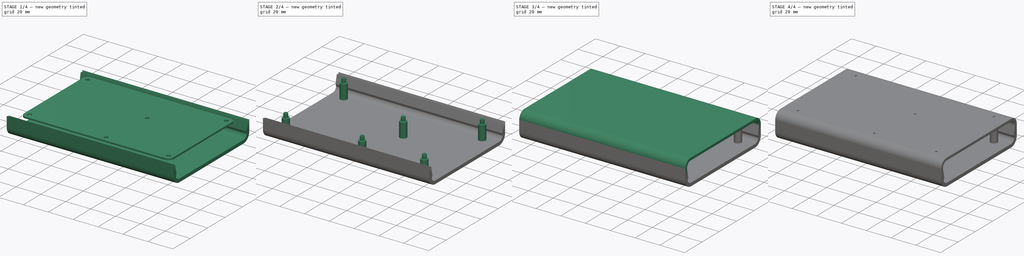
[diagram: build sequence overview — one tinted view per stage of 4, left to right]
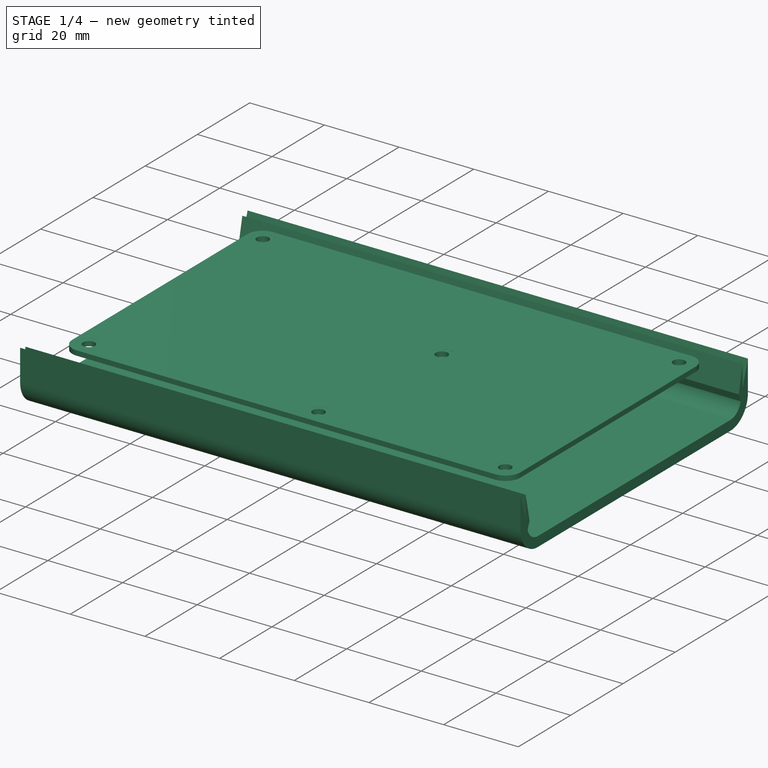
[diagram: stage 1 of 4 — iso view after this stage's code; geometry added in this stage tinted green]
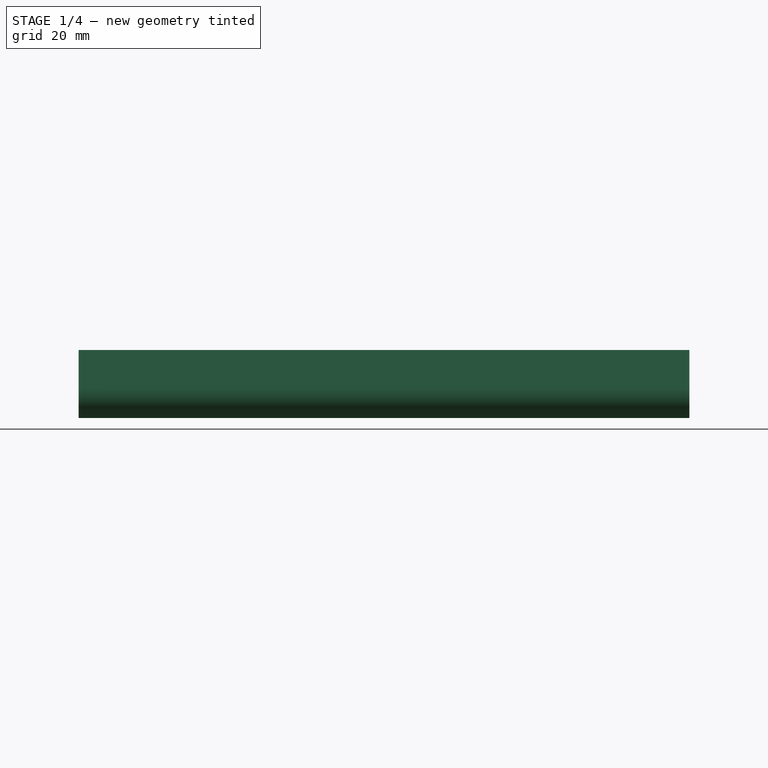
[diagram: stage 1 of 4 — front view after this stage's code; geometry added in this stage tinted green]
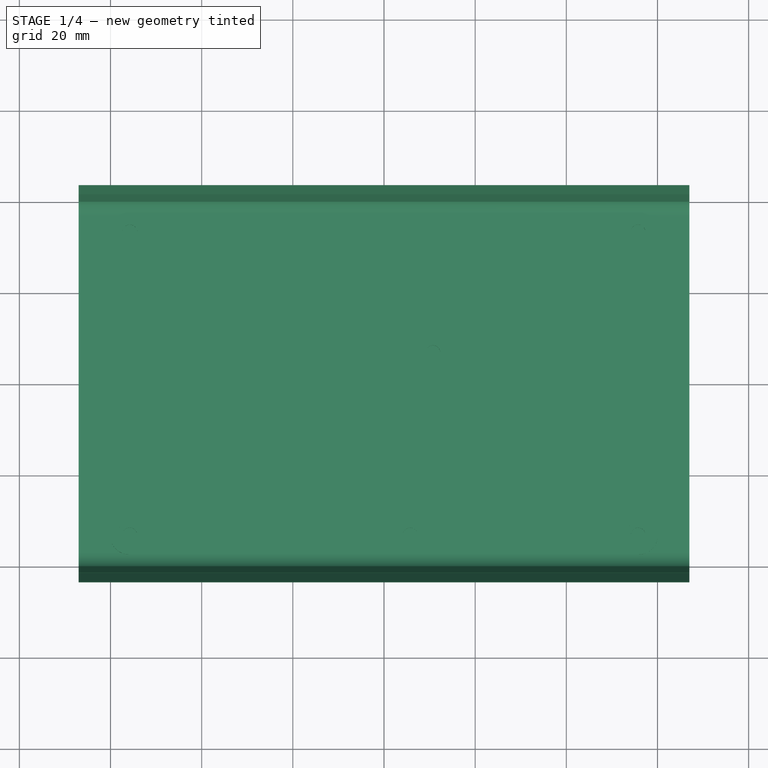
[diagram: stage 1 of 4 — top view after this stage's code; geometry added in this stage tinted green]
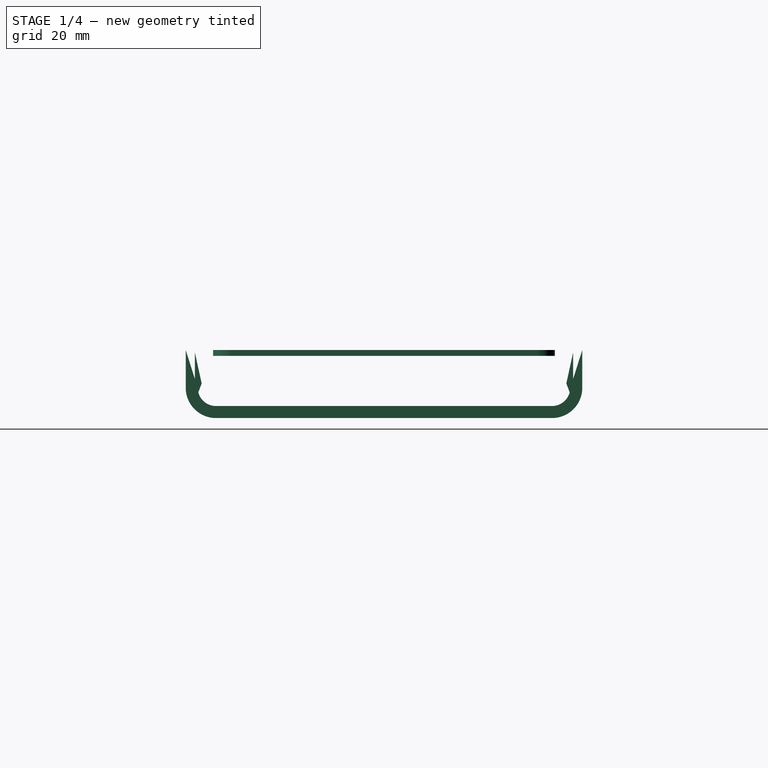
[diagram: stage 1 of 4 — right view after this stage's code; geometry added in this stage tinted green]
FCSTD DOCUMENT  (FreeCAD 1.0R39319 (Git))
Label: Закрывающий корпус новы
License: All rights reserved
LicenseURL: https://en.wikipedia.org/wiki/All_rights_reserved
objects: Sketcher::SketchObject×8, PartDesign::Pad×7, PartDesign::Pocket×4, PartDesign::Body×3, PartDesign::SubShapeBinder×2
note: 54 computed .brp shape members not serialized (recipe doc carries the construction recipe); baked Part::Feature solids carry a one-line shape summary decoded from their .brp

FEATURE [Sketcher::SketchObject] Sketch012  label="Тыльная сторона"
  ArcFitTolerance = 1e-06
  AttachmentOffset = pos=(0,0,60) rot=(0,0,1;3.14159rad)
  AttachmentSupport = -> [YZ_Plane]
  FullyConstrained = true
  MakeInternals = false
  MapMode = 5
  Placement = pos=(60,0,0) rot=(0.57735,-0.57735,0.57735;4.18879rad)
  sketch-geometry (23):
    g0: GeomPoint X=0 Y=0 Z=0
    g1: GeomPoint X=-7.5 Y=1.3 Z=0
    g2: GeomPoint X=-25.5 Y=1.3 Z=0
    g3: Circle CenterX=-25.5 CenterY=1.3 CenterZ=0 NormalX=0 NormalY=0 NormalZ=1 AngleXU=0 Radius=3.05
    g4: Circle CenterX=-7.5 CenterY=1.3 CenterZ=0 NormalX=0 NormalY=0 NormalZ=1 AngleXU=0 Radius=3.05
    g5: LineSegment [constr] StartX=-4.35 StartY=4.45 StartZ=0 EndX=-10.65 EndY=4.45 EndZ=0
    g6: LineSegment [constr] StartX=-10.65 StartY=4.45 StartZ=0 EndX=-10.65 EndY=-1.85 EndZ=0
    g7: LineSegment [constr] StartX=-10.65 StartY=-1.85 StartZ=0 EndX=-4.35 EndY=-1.85 EndZ=0
    g8: LineSegment [constr] StartX=-4.35 StartY=-1.85 StartZ=0 EndX=-4.35 EndY=4.45 EndZ=0
    g9: LineSegment [constr] StartX=-22.35 StartY=4.45 StartZ=0 EndX=-28.65 EndY=4.45 EndZ=0
    g10: LineSegment [constr] StartX=-28.65 StartY=4.45 StartZ=0 EndX=-28.65 EndY=-1.85 EndZ=0
    g11: LineSegment [constr] StartX=-28.65 StartY=-1.85 StartZ=0 EndX=-22.35 EndY=-1.85 EndZ=0
    g12: LineSegment [constr] StartX=-22.35 StartY=-1.85 StartZ=0 EndX=-22.35 EndY=4.45 EndZ=0
    g13: LineSegment [constr] StartX=37.5 StartY=0.65 StartZ=0 EndX=-37.5 EndY=0.65 EndZ=0
    g14: LineSegment [constr] StartX=-37.5 StartY=0.65 StartZ=0 EndX=-37.5 EndY=-0.65 EndZ=0
    g15: LineSegment [constr] StartX=-37.5 StartY=-0.65 StartZ=0 EndX=37.5 EndY=-0.65 EndZ=0
    g16: LineSegment [constr] StartX=37.5 StartY=-0.65 StartZ=0 EndX=37.5 EndY=0.65 EndZ=0
    g17: LineSegment StartX=10.1 StartY=1.85 StartZ=0 EndX=11.3042 EndY=0.65 EndZ=0
    g18: LineSegment StartX=11.3042 StartY=0.65 StartZ=0 EndX=16.4458 EndY=0.65 EndZ=0
    g19: LineSegment StartX=16.4458 StartY=0.65 StartZ=0 EndX=17.65 EndY=1.85 EndZ=0
    g20: LineSegment StartX=17.65 StartY=1.85 StartZ=0 EndX=16.4458 EndY=3.25 EndZ=0
    g21: LineSegment StartX=16.4458 StartY=3.25 StartZ=0 EndX=11.3042 EndY=3.25 EndZ=0
    g22: LineSegment StartX=11.3042 StartY=3.25 StartZ=0 EndX=10.1 EndY=1.85 EndZ=0
  constraints (61):
    c: DistanceX(g1,g0) = 7.5
    c: DistanceX(g2,g0) = 25.5
    c: Coincident(g3,g2)
    c: Coincident(g4,g1)
    c: Equal(g4,g3)
    c: Diameter(g4) = 6.1
    c: Coincident(g0,g-1)
    c: Coincident(g5,g6)
    c: Coincident(g6,g7)
    c: Coincident(g7,g8)
    c: Coincident(g8,g5)
    c: Horizontal(g5)
    c: Horizontal(g7)
    c: Vertical(g6)
    c: Vertical(g8)
    c: Coincident(g9,g10)
    c: Coincident(g10,g11)
    c: Coincident(g11,g12)
    c: Coincident(g12,g9)
    c: Horizontal(g9)
    c: Horizontal(g11)
    c: Vertical(g10)
    c: Vertical(g12)
    c: Coincident(g13,g14)
    c: Coincident(g14,g15)
    c: Coincident(g15,g16)
    c: Coincident(g16,g13)
    c: Horizontal(g13)
    c: Horizontal(g15)
    c: Vertical(g14)
    c: Vertical(g16)
    c: Distance(g14,g16) = 75
    c: Distance(g13,g15) = 1.3
    c: Symmetric(g14,g13,g0)
    c: Distance(g6,g15) = 1.2
    c: Symmetric(g6,g5,g1)
    c: DistanceY(g6,g6) = 6.3
    c: Equal(g5,g6)
    c: Symmetric(g10,g9,g2)
    c: Equal(g6,g10)
    c: Equal(g9,g10)
    c: Horizontal(g2,g1)
    c: Distance(g5,g13) = 3.8
    c: Coincident(g17,g18)
    c: Horizontal(g18)
    c: Coincident(g18,g19)
    c: Coincident(g19,g20)
    c: Coincident(g20,g21)
    c: Horizontal(g21)
    c: Coincident(g21,g22)
    c: Coincident(g22,g17)
    c: Equal(g20,g22)
    c: Equal(g17,g19)
    c: Vertical(g17,g21)
    c: Vertical(g20,g18)
    c: DistanceY(g17,g17) = 1.2
    c: DistanceX(g17,g19) = 7.55
    c: Distance(g21,g18) = 2.6
    c: Distance(g17,g17) = 1.7
    c: PointOnObject(g18,g13)
    c: DistanceX(g17,g13) = 27.4
FEATURE [Sketcher::SketchObject] Sketch013  label="Лицевая сторона"
  ArcFitTolerance = 1e-06
  AttachmentOffset = pos=(0,0,-60) rot=(-1,0,0;3.14159rad)
  AttachmentSupport = -> [YZ_Plane]
  FullyConstrained = true
  MakeInternals = false
  MapMode = 5
  Placement = pos=(-60,0,0) rot=(-0.57735,-0.57735,0.57735;2.0944rad)
  sketch-geometry (27):
    g0: GeomPoint X=2.2 Y=0.65 Z=0
    g1: GeomPoint X=6.77 Y=0.65 Z=0
    g2: GeomPoint X=11.34 Y=0.65 Z=0
    g3: GeomPoint X=-2.37 Y=0.65 Z=0
    g4: GeomPoint X=-6.94 Y=0.65 Z=0
    g5: GeomPoint X=-19.59 Y=0.65 Z=0
    g6: GeomPoint [constr] X=-19.59 Y=3.65 Z=0
    g7: GeomPoint X=-26.09 Y=3.65 Z=0
    g8: GeomPoint X=-13.09 Y=3.65 Z=0
    g9: GeomPoint X=23.5 Y=1.3 Z=0
    g10: Circle CenterX=23.5 CenterY=1.3 CenterZ=0 NormalX=0 NormalY=0 NormalZ=1 AngleXU=0 Radius=3.05
    g11: Circle CenterX=11.34 CenterY=0.65 CenterZ=0 NormalX=0 NormalY=0 NormalZ=1 AngleXU=0 Radius=1
    g12: Circle CenterX=6.77 CenterY=0.65 CenterZ=0 NormalX=0 NormalY=0 NormalZ=1 AngleXU=0 Radius=1
    g13: Circle CenterX=2.2 CenterY=0.65 CenterZ=0 NormalX=0 NormalY=0 NormalZ=1 AngleXU=0 Radius=1
    g14: Circle CenterX=-2.37 CenterY=0.65 CenterZ=0 NormalX=0 NormalY=0 NormalZ=1 AngleXU=0 Radius=1
    g15: Circle CenterX=-19.59 CenterY=0.65 CenterZ=0 NormalX=0 NormalY=0 NormalZ=1 AngleXU=0 Radius=1
    g16: Circle CenterX=-6.94 CenterY=0.65 CenterZ=0 NormalX=0 NormalY=0 NormalZ=1 AngleXU=0 Radius=1
    g17: Circle CenterX=-13.09 CenterY=3.65 CenterZ=0 NormalX=0 NormalY=0 NormalZ=1 AngleXU=0 Radius=2
    g18: Circle CenterX=-26.09 CenterY=3.65 CenterZ=0 NormalX=0 NormalY=0 NormalZ=1 AngleXU=0 Radius=2
    g19: LineSegment [constr] StartX=-37.5 StartY=0.65 StartZ=0 EndX=-37.5 EndY=-0.65 EndZ=0
    g20: LineSegment [constr] StartX=-37.5 StartY=-0.65 StartZ=0 EndX=37.5 EndY=-0.65 EndZ=0
    g21: LineSegment [constr] StartX=37.5 StartY=-0.65 StartZ=0 EndX=37.5 EndY=0.65 EndZ=0
    g22: LineSegment [constr] StartX=37.5 StartY=0.65 StartZ=0 EndX=-37.5 EndY=0.65 EndZ=0
    g23: LineSegment [constr] StartX=26.65 StartY=4.45 StartZ=0 EndX=20.35 EndY=4.45 EndZ=0
    g24: LineSegment [constr] StartX=20.35 StartY=4.45 StartZ=0 EndX=20.35 EndY=-1.85 EndZ=0
    g25: LineSegment [constr] StartX=20.35 StartY=-1.85 StartZ=0 EndX=26.65 EndY=-1.85 EndZ=0
    g26: LineSegment [constr] StartX=26.65 StartY=-1.85 StartZ=0 EndX=26.65 EndY=4.45 EndZ=0
  constraints (59):
    c: DistanceX(g-1,g0) = 2.2
    c: DistanceX(g0,g1) = 4.57
    c: DistanceX(g1,g2) = 4.57
    c: DistanceX(g3,g0) = 4.57
    c: DistanceX(g4,g3) = 4.57
    c: DistanceX(g5,g4) = 12.65
    c: Symmetric(g8,g7,g6)
    c: Vertical(g6,g5)
    c: DistanceX(g7,g6) = 6.5
    c: Horizontal(g7,g8)
    c: DistanceX(g2,g9) = 12.16
    c: Coincident(g10,g9)
    c: Diameter(g10) = 6.1
    c: Coincident(g11,g2)
    c: Coincident(g12,g1)
    c: Coincident(g13,g0)
    c: Coincident(g14,g3)
    c: Coincident(g15,g5)
    c: Coincident(g16,g4)
    c: Equal(g15,g16)
    c: Equal(g16,g14)
    c: Equal(g14,g13)
    c: Equal(g13,g12)
    c: Equal(g12,g11)
    c: Diameter(g12) = 2
    c: Coincident(g17,g8)
    c: Coincident(g18,g7)
    c: Equal(g18,g17)
    c: Diameter(g17) = 4
    c: Coincident(g19,g20)
    c: Coincident(g20,g21)
    c: Coincident(g21,g22)
    c: Coincident(g22,g19)
    c: Vertical(g19)
    c: Vertical(g21)
    c: Horizontal(g20)
    c: Horizontal(g22)
    c: DistanceY(g19,g19) = 1.3
    c: DistanceX(g22,g22) = 75
    c: Symmetric(g20,g19,g-1)
    c: Coincident(g23,g24)
    c: Coincident(g24,g25)
    c: Coincident(g25,g26)
    c: Coincident(g26,g23)
    c: Horizontal(g23)
    c: Horizontal(g25)
    c: Vertical(g24)
    c: Vertical(g26)
    c: Symmetric(g24,g23,g9)
    c: Distance(g24,g20) = 1.2
    c: Equal(g24,g23)
    c: DistanceY(g24,g24) = 6.3
    c: Horizontal(g0,g3)
    c: Horizontal(g1,g0)
    c: Horizontal(g3,g4)
    c: Distance(g6,g22) = 3
    c: Horizontal(g5,g4)
    c: Horizontal(g1,g2)
    c: DistanceY(g-1,g0) = 0.65
FEATURE [Sketcher::SketchObject] Sketch  label="Основной эскиз"
  ArcFitTolerance = 1e-06
  FullyConstrained = true
  MakeInternals = false
  MapMode = 5
  sketch-geometry (25):
    g0: Circle CenterX=-55.75 CenterY=33.25 CenterZ=0 NormalX=0 NormalY=0 NormalZ=1 AngleXU=0 Radius=1.6
    g1: Circle CenterX=55.75 CenterY=33.25 CenterZ=0 NormalX=0 NormalY=0 NormalZ=1 AngleXU=0 Radius=1.6
    g2: Circle CenterX=-55.75 CenterY=-33.25 CenterZ=0 NormalX=0 NormalY=0 NormalZ=1 AngleXU=0 Radius=1.6
    g3: Circle CenterX=55.75 CenterY=-33.25 CenterZ=0 NormalX=0 NormalY=0 NormalZ=1 AngleXU=0 Radius=1.6
    g4: Circle CenterX=5.75 CenterY=-33.25 CenterZ=0 NormalX=0 NormalY=0 NormalZ=1 AngleXU=0 Radius=1.6
    g5: Circle CenterX=10.75 CenterY=6.75 CenterZ=0 NormalX=0 NormalY=0 NormalZ=1 AngleXU=0 Radius=1.6
    g6: Circle CenterX=-55.75 CenterY=33.25 CenterZ=0 NormalX=0 NormalY=0 NormalZ=1 AngleXU=0 Radius=2.75
    g7: Circle CenterX=5.75 CenterY=-33.25 CenterZ=0 NormalX=0 NormalY=0 NormalZ=1 AngleXU=0 Radius=2.75
    g8: Circle CenterX=55.75 CenterY=33.25 CenterZ=0 NormalX=0 NormalY=0 NormalZ=1 AngleXU=0 Radius=2.75
    g9: Circle CenterX=10.75 CenterY=6.75 CenterZ=0 NormalX=0 NormalY=0 NormalZ=1 AngleXU=0 Radius=2.75
    g10: Circle CenterX=55.75 CenterY=-33.25 CenterZ=0 NormalX=0 NormalY=0 NormalZ=1 AngleXU=0 Radius=2.75
    g11: Circle CenterX=-55.75 CenterY=-33.25 CenterZ=0 NormalX=0 NormalY=0 NormalZ=1 AngleXU=0 Radius=2.75
    g12: GeomPoint [constr] X=0 Y=0 Z=0
    g13: GeomPoint [constr] X=-60 Y=-37.5 Z=0
    g14: GeomPoint [constr] X=-60 Y=37.5 Z=0
    g15: GeomPoint [constr] X=60 Y=37.5 Z=0
    g16: GeomPoint [constr] X=60 Y=-37.5 Z=0
    g17: ArcOfCircle CenterX=-56 CenterY=-33.5 CenterZ=0 NormalX=0 NormalY=0 NormalZ=1 AngleXU=0 Radius=4 StartAngle=3.14159 EndAngle=4.71239
    g18: ArcOfCircle CenterX=-56 CenterY=33.5 CenterZ=0 NormalX=0 NormalY=0 NormalZ=1 AngleXU=0 Radius=4 StartAngle=1.5708 EndAngle=3.14159
    g19: ArcOfCircle CenterX=56 CenterY=33.5 CenterZ=0 NormalX=0 NormalY=0 NormalZ=1 AngleXU=0 Radius=4 StartAngle=0 EndAngle=1.5708
    g20: ArcOfCircle CenterX=56 CenterY=-33.5 CenterZ=0 NormalX=0 NormalY=0 NormalZ=1 AngleXU=0 Radius=4 StartAngle=4.71239 EndAngle=6.28319
    g21: LineSegment StartX=-56 StartY=-37.5 StartZ=0 EndX=56 EndY=-37.5 EndZ=0
    g22: LineSegment StartX=60 StartY=-33.5 StartZ=0 EndX=60 EndY=33.5 EndZ=0
    g23: LineSegment StartX=56 StartY=37.5 StartZ=0 EndX=-56 EndY=37.5 EndZ=0
    g24: LineSegment StartX=-60 StartY=33.5 StartZ=0 EndX=-60 EndY=-33.5 EndZ=0
  constraints (65):
    c: Equal(g0,g2)
    c: Equal(g2,g4)
    c: Equal(g4,g5)
    c: Equal(g5,g3)
    c: Equal(g3,g1)
    c: Vertical(g2,g0)
    c: Vertical(g1,g3)
    c: Horizontal(g3,g2)
    c: DistanceX(g0,g1) = 111.5  'Main Lenght'
    c: DistanceY(g3,g1) = 66.5
    c: Radius(g0) = 1.6
    c: Coincident(g6,g0)
    c: Coincident(g7,g4)
    c: Coincident(g8,g1)
    c: Coincident(g9,g5)
    c: Coincident(g10,g3)
    c: Coincident(g11,g2)
    c: Diameter(g6) = 5.5
    c: Equal(g6,g7)
    c: Equal(g7,g8)
    c: Equal(g8,g10)
    c: Equal(g10,g9)
    c: Equal(g9,g11)
    c: Symmetric(g2,g1,g12)
    c: Coincident(g-1,g12)
    c: Horizontal(g17,g20)
    c: Vertical(g20,g19)
    c: Horizontal(g19,g18)
    c: Vertical(g18,g17)
    c: Vertical(g13,g17)
    c: Horizontal(g13,g17)
    c: Vertical(g17,g17)
    c: Vertical(g18,g18)
    c: Horizontal(g18,g14)
    c: Vertical(g18,g14)
    c: Horizontal(g18,g18)
    c: Vertical(g19,g19)
    c: Horizontal(g19,g15)
    c: Vertical(g15,g19)
    c: Horizontal(g19,g19)
    c: Vertical(g16,g20)
    c: Horizontal(g16,g20)
    c: Vertical(g20,g20)
    c: Horizontal(g20,g20)
    c: Coincident(g21,g17)
    c: Coincident(g21,g20)
    c: Coincident(g22,g20)
    c: Coincident(g22,g19)
    c: Coincident(g23,g19)
    c: Coincident(g23,g18)
    c: Coincident(g24,g18)
    c: Tangent(g24,g17) = -1.5708
    c: Radius(g18) = 4
    c: Equal(g17,g18)
    c: Equal(g18,g19)
    c: Equal(g19,g20)
    c: DistanceY(g13,g14) = 75
    c: DistanceX(g14,g15) = 120
    c: Symmetric(g13,g15,g12)
    c: Horizontal(g2,g4)
    c: DistanceY(g4,g5) = 40
    c: Horizontal(g0,g1)
    c: Distance(g22,g24) = 120
    c: DistanceX(g4,g3) = 50
    c: DistanceX(g4,g5) = 5
FEATURE [PartDesign::Pad] Pad  label="Основа "
  Direction = (0,0,1)
  Length = 0.65
  Length2 = 0.65
  Profile = -> Sketch [Edge15,Edge16,Edge17,Edge18,Edge19,Edge20,Edge13,Edge14,Edge9,Edge10,Edge8,Edge11,Edge12,Edge7]
  ReferenceAxis = -> Sketch [N_Axis]
  Refine = true
  Suppressed = false
  Type = 4
FEATURE [PartDesign::Pad] Pad001  label="Отверстия под крепления"
  BaseFeature = -> Pad
  Direction = (0,0,1)
  Length = 0.63
  Length2 = 0.63
  Profile = -> Sketch [Edge8,Edge5,Edge12,Edge3,Edge10,Edge6,Edge7,Edge1,Edge9,Edge2,Edge4,Edge11]
  ReferenceAxis = -> Sketch [N_Axis]
  Refine = true
  Suppressed = false
  Type = 4
FEATURE [Sketcher::SketchObject] Sketch015
  ArcFitTolerance = 1e-06
  AttachmentSupport = -> [YZ_Plane002]
  FullyConstrained = true
  MakeInternals = false
  MapMode = 5
  Placement = pos=(0,0,0) rot=(0.57735,0.57735,0.57735;2.0944rad)
  sketch-geometry (22):
    g0: LineSegment StartX=-41.5 StartY=-5.69319 StartZ=0 EndX=-43.5 EndY=0.65 EndZ=0
    g1: LineSegment StartX=-41.5 StartY=0.15 StartZ=0 EndX=-41.5 EndY=-5.69319 EndZ=0
    g2: LineSegment StartX=-41.5 StartY=0.15 StartZ=0 EndX=-40 EndY=-6.69319 EndZ=0
    g3: LineSegment StartX=-40 StartY=-6.69319 StartZ=0 EndX=-40.7366 EndY=-8.65 EndZ=0
    g4: LineSegment StartX=-43.5 StartY=0.65 StartZ=0 EndX=-43.5 EndY=-7.65 EndZ=0
    g5: LineSegment [constr] StartX=-37.5 StartY=0.65 StartZ=0 EndX=-37.5 EndY=-0.65 EndZ=0
    g6: LineSegment [constr] StartX=-37.5 StartY=-0.65 StartZ=0 EndX=37.5 EndY=-0.65 EndZ=0
    g7: LineSegment [constr] StartX=37.5 StartY=-0.65 StartZ=0 EndX=37.5 EndY=0.65 EndZ=0
    g8: LineSegment [constr] StartX=37.5 StartY=0.65 StartZ=0 EndX=-37.5 EndY=0.65 EndZ=0
    g9: LineSegment StartX=43.5 StartY=0.65 StartZ=0 EndX=43.5 EndY=-7.65 EndZ=0
    g10: LineSegment StartX=43.5 StartY=0.65 StartZ=0 EndX=41.5 EndY=-5.69319 EndZ=0
    g11: LineSegment StartX=41.5 StartY=-5.69319 StartZ=0 EndX=41.5 EndY=0.15 EndZ=0
    g12: LineSegment StartX=41.5 StartY=0.15 StartZ=0 EndX=40 EndY=-6.69319 EndZ=0
    g13: LineSegment StartX=40 StartY=-6.69319 StartZ=0 EndX=40.7366 EndY=-8.65 EndZ=0
    g14: ArcOfCircle CenterX=-36.8636 CenterY=-7.65 CenterZ=0 NormalX=0 NormalY=0 NormalZ=1 AngleXU=0 Radius=6.63643 StartAngle=3.14159 EndAngle=4.71239
    g15: ArcOfCircle CenterX=-36.8636 CenterY=-7.65 CenterZ=0 NormalX=0 NormalY=0 NormalZ=1 AngleXU=0 Radius=4 StartAngle=3.39427 EndAngle=4.71239
    g16: LineSegment [constr] StartX=-41.5 StartY=-5.69319 StartZ=0 EndX=-40.7366 EndY=-8.65 EndZ=0
    g17: LineSegment StartX=-36.8636 StartY=-11.65 StartZ=0 EndX=36.8636 EndY=-11.65 EndZ=0
    g18: LineSegment StartX=-36.8636 StartY=-14.2864 StartZ=0 EndX=36.8636 EndY=-14.2864 EndZ=0
    g19: ArcOfCircle CenterX=36.8636 CenterY=-7.65 CenterZ=0 NormalX=0 NormalY=0 NormalZ=1 AngleXU=0 Radius=4 StartAngle=4.71239 EndAngle=6.03051
    g20: ArcOfCircle CenterX=36.8636 CenterY=-7.65 CenterZ=0 NormalX=0 NormalY=0 NormalZ=1 AngleXU=0 Radius=6.63643 StartAngle=4.71239 EndAngle=6.28319
    g21: LineSegment [constr] StartX=40.7366 StartY=-8.65 StartZ=0 EndX=41.5 EndY=-5.69319 EndZ=0
  constraints (55):
    c: Coincident(g1,g0)
    c: Vertical(g1)
    c: Coincident(g1,g2)
    c: Coincident(g2,g3)
    c: Coincident(g0,g4)
    c: Vertical(g4)
    c: Coincident(g5,g6)
    c: Coincident(g6,g7)
    c: Coincident(g7,g8)
    c: Coincident(g8,g5)
    c: Vertical(g5)
    c: Vertical(g7)
    c: Horizontal(g6)
    c: Horizontal(g8)
    c: Distance(g5,g7) = 75
    c: Distance(g6,g8) = 1.3
    c: Symmetric(g6,g5,g-1)
    c: DistanceY(g4,g5) = 7
    c: DistanceX(g0,g2) = 1.5
    c: DistanceY(g3,g4) = 1
    c: Vertical(g9)
    c: Coincident(g9,g10)
    c: Coincident(g10,g11)
    c: Coincident(g11,g12)
    c: Coincident(g12,g13)
    c: Symmetric(g3,g13,g-2)
    c: Symmetric(g12,g2,g-2)
    c: Symmetric(g10,g0,g-2)
    c: Symmetric(g9,g0,g-2)
    c: DistanceY(g1,g0) = 0.5
    c: Coincident(g15,g14)
    c: Coincident(g15,g3)
    c: Coincident(g16,g0)
    c: Coincident(g16,g3)
    c: Tangent(g14,g4) = -1.5708
    c: Tangent(g16,g15)
    c: DistanceY(g15,g4) = 4
    c: Distance(g0,g4) = 2
    c: Horizontal(g17)
    c: Horizontal(g18)
    c: Tangent(g18,g14) = -1.5708
    c: Tangent(g17,g15) = -1.5708
    c: Horizontal(g0,g5)
    c: Distance(g1,g5) = 4
    c: Angle(g1,g0) = 0.305433
    c: DistanceY(g2,g0) = 1
    c: Coincident(g20,g19)
    c: Tangent(g20,g18) = -1.5708
    c: Symmetric(g19,g14,g-2)
    c: Coincident(g21,g13)
    c: Coincident(g21,g10)
    c: Coincident(g20,g9)
    c: Coincident(g19,g13)
    c: Coincident(g19,g17)
    c: Symmetric(g1,g11,g-2)
FEATURE [PartDesign::Pad] Pad003
  Direction = (1,0,0)
  Length = 67
  Length2 = 67
  Placement = pos=(0,0,0) rot=(1,1,1;2.0944rad)
  Profile = -> Sketch015
  ReferenceAxis = -> Sketch015 [N_Axis]
  Refine = true
  Reversed = true
  Suppressed = false
  Type = 4
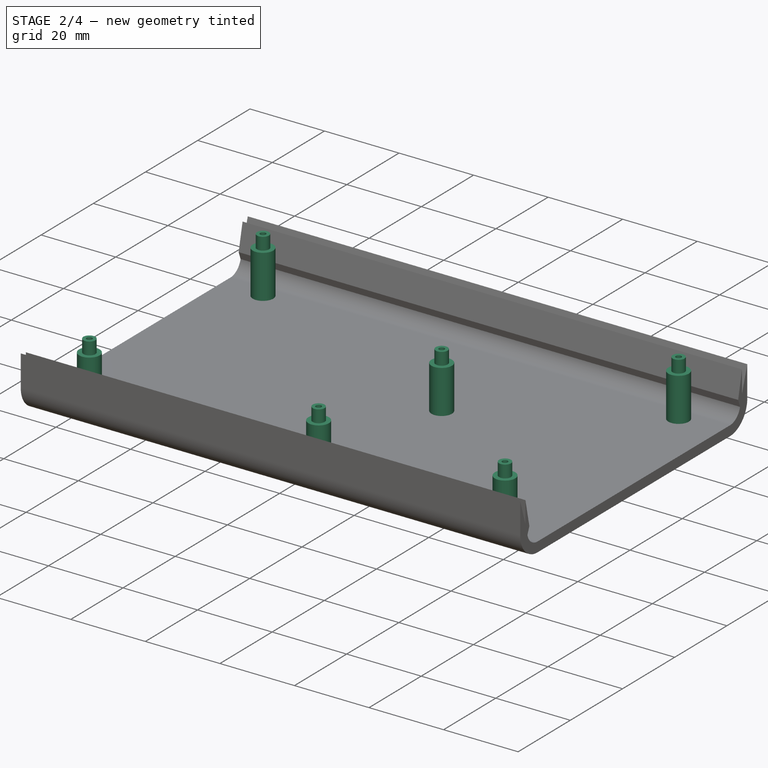
[diagram: stage 2 of 4 — iso view after this stage's code; geometry added in this stage tinted green]
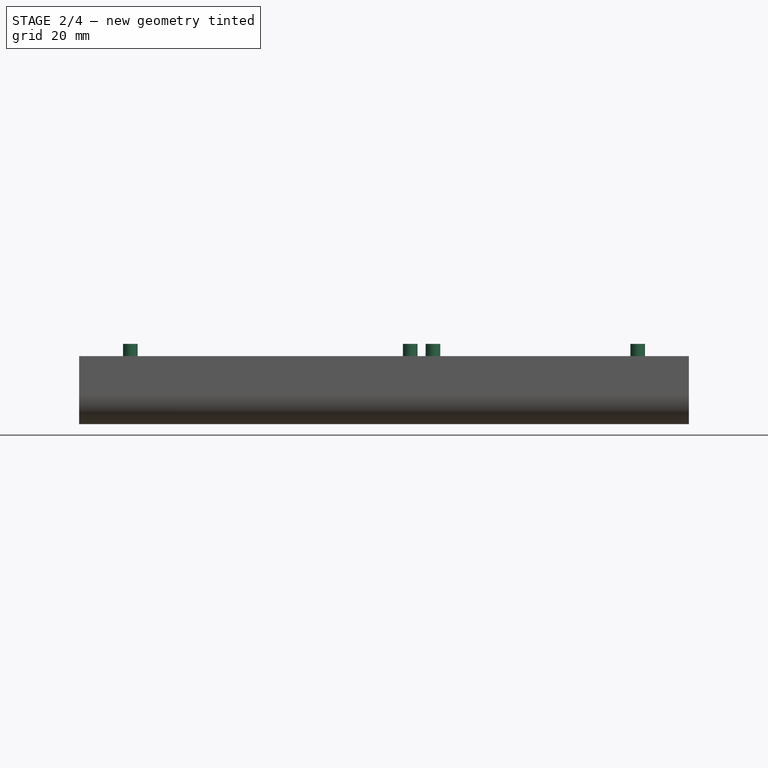
[diagram: stage 2 of 4 — front view after this stage's code; geometry added in this stage tinted green]
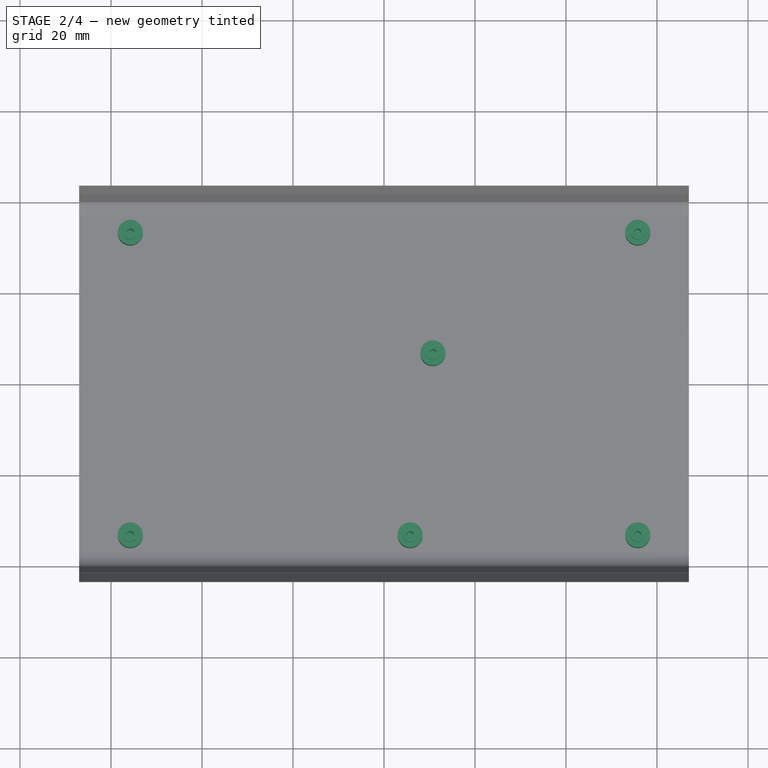
[diagram: stage 2 of 4 — top view after this stage's code; geometry added in this stage tinted green]
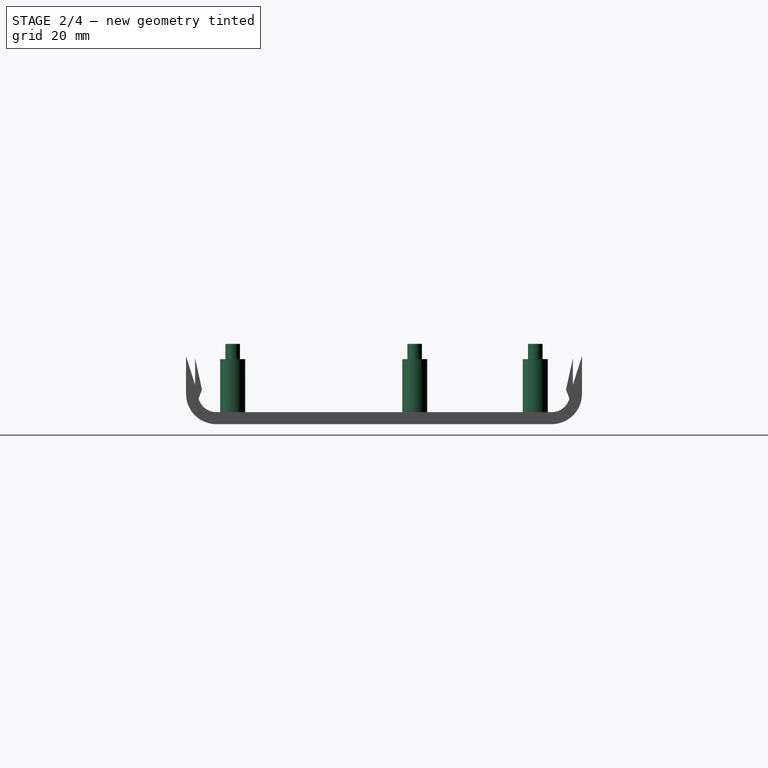
[diagram: stage 2 of 4 — right view after this stage's code; geometry added in this stage tinted green]
FEATURE [PartDesign::Body] Body  label="Нижняя часть корпуса"
  AllowCompound = false
  Group = -> [Sketch014,Pad002,Sketch017,Binder,Pad004,Pocket,Pocket001,Pocket002]
  Origin = -> Origin001
  Tip = -> Pocket002
FEATURE [PartDesign::SubShapeBinder] Binder001
  BindCopyOnChange = 0
  BindMode = 0
  ClaimChildren = false
  Context = -> Body003 [Binder001.]
  Fuse = false
  MakeFace = true
  OffsetFill = false
  OffsetIntersection = false
  OffsetJoinType = 0
  OffsetOpenResult = false
  PartialLoad = false
  Refine = true
  Relative = true
  Support = -> [Body002[Pad001.Face35,Pad001.Face23,Pad001.Face37,Pad001.Face25,Pad001.Face24,Pad001.Face36,Pad001.Face40,Pad001.Face28]]
  _Version = 2
FEATURE [Sketcher::SketchObject] Sketch020
  ArcFitTolerance = 1e-06
  AttachmentSupport = -> [XY_Plane002]
  ExternalGeometry = -> [Binder001]
  FullyConstrained = true
  MakeInternals = false
  MapMode = 5
  sketch-geometry (18):
    g0: Circle CenterX=-55.75 CenterY=33.25 CenterZ=0 NormalX=0 NormalY=0 NormalZ=1 AngleXU=0 Radius=1.6
    g1: Circle CenterX=-55.75 CenterY=33.25 CenterZ=0 NormalX=0 NormalY=0 NormalZ=1 AngleXU=0 Radius=2.75
    g2: Circle CenterX=-55.75 CenterY=33.25 CenterZ=0 NormalX=0 NormalY=0 NormalZ=1 AngleXU=0 Radius=0.75
    g3: Circle CenterX=55.75 CenterY=33.25 CenterZ=0 NormalX=0 NormalY=0 NormalZ=1 AngleXU=0 Radius=1.6
    g4: Circle CenterX=55.75 CenterY=33.25 CenterZ=0 NormalX=0 NormalY=0 NormalZ=1 AngleXU=0 Radius=2.75
    g5: Circle CenterX=55.75 CenterY=33.25 CenterZ=0 NormalX=0 NormalY=0 NormalZ=1 AngleXU=0 Radius=0.75
    g6: Circle CenterX=10.75 CenterY=6.75 CenterZ=0 NormalX=0 NormalY=0 NormalZ=1 AngleXU=0 Radius=1.6
    g7: Circle CenterX=10.75 CenterY=6.75 CenterZ=0 NormalX=0 NormalY=0 NormalZ=1 AngleXU=0 Radius=2.75
    g8: Circle CenterX=10.75 CenterY=6.75 CenterZ=0 NormalX=0 NormalY=0 NormalZ=1 AngleXU=0 Radius=0.75
    g9: Circle CenterX=55.75 CenterY=-33.25 CenterZ=0 NormalX=0 NormalY=0 NormalZ=1 AngleXU=0 Radius=1.6
    g10: Circle CenterX=55.75 CenterY=-33.25 CenterZ=0 NormalX=0 NormalY=0 NormalZ=1 AngleXU=0 Radius=2.75
    g11: Circle CenterX=55.75 CenterY=-33.25 CenterZ=0 NormalX=0 NormalY=0 NormalZ=1 AngleXU=0 Radius=0.75
    g12: Circle CenterX=5.75 CenterY=-33.25 CenterZ=0 NormalX=0 NormalY=0 NormalZ=1 AngleXU=0 Radius=1.6
    g13: Circle CenterX=5.75 CenterY=-33.25 CenterZ=0 NormalX=0 NormalY=0 NormalZ=1 AngleXU=0 Radius=2.75
    g14: Circle CenterX=5.75 CenterY=-33.25 CenterZ=0 NormalX=0 NormalY=0 NormalZ=1 AngleXU=0 Radius=0.75
    g15: Circle CenterX=-55.75 CenterY=-33.25 CenterZ=0 NormalX=0 NormalY=0 NormalZ=1 AngleXU=0 Radius=1.6
    g16: Circle CenterX=-55.75 CenterY=-33.25 CenterZ=0 NormalX=0 NormalY=0 NormalZ=1 AngleXU=0 Radius=2.75
    g17: Circle CenterX=-55.75 CenterY=-33.25 CenterZ=0 NormalX=0 NormalY=0 NormalZ=1 AngleXU=0 Radius=0.75
  constraints (36):
    c: Coincident(g0,g-4)
    c: Coincident(g1,g0)
    c: Coincident(g2,g0)
    c: Coincident(g3,g-8)
    c: Coincident(g4,g3)
    c: Coincident(g5,g3)
    c: Coincident(g6,g-6)
    c: Coincident(g7,g6)
    c: Coincident(g8,g6)
    c: Coincident(g9,g-10)
    c: Coincident(g10,g9)
    c: Coincident(g11,g9)
    c: Coincident(g12,g-12)
    c: Coincident(g13,g12)
    c: Coincident(g14,g12)
    c: Coincident(g15,g-14)
    c: Coincident(g16,g15)
    c: Coincident(g17,g15)
    c: Equal(g2,g8)
    c: Equal(g8,g5)
    c: Equal(g5,g11)
    c: Equal(g11,g14)
    c: Equal(g14,g17)
    c: Diameter(g2) = 1.5
    c: Equal(g1,g4)
    c: Equal(g4,g7)
    c: Equal(g7,g10)
    c: Equal(g10,g13)
    c: Equal(g13,g16)
    c: Equal(g1,g-3)
    c: Equal(g0,g3)
    c: Equal(g3,g6)
    c: Equal(g6,g9)
    c: Equal(g9,g12)
    c: Equal(g12,g15)
    c: Equal(g0,g-4)
FEATURE [PartDesign::Pad] Pad005
  BaseFeature = -> Pad003
  Direction = (0,0,1)
  Length = 10
  Length2 = 10
  Placement = pos=(0,0,0) rot=(1,1,1;2.0944rad)
  Profile = -> Sketch020 [Edge2,Edge8,Edge14,Edge17,Edge11,Edge5]
  ReferenceAxis = -> Sketch020 [N_Axis]
  Refine = true
  Suppressed = false
  Type = 3
  UpToFace = -> Pad003 [Face16]
FEATURE [PartDesign::Pad] Pad006
  BaseFeature = -> Pad005
  Direction = (0,0,1)
  Length = 3.35
  Length2 = 10
  Placement = pos=(0,0,0) rot=(1,1,1;2.0944rad)
  Profile = -> Sketch020 [Edge7,Edge10,Edge13,Edge4,Edge1,Edge16]
  ReferenceAxis = -> Sketch020 [N_Axis]
  Refine = true
  Suppressed = false
  Type = 0
FEATURE [PartDesign::Pocket] Pocket003
  BaseFeature = -> Pad006
  Direction = (0,0,-1)
  Length = 10
  Length2 = 10
  Placement = pos=(0,0,0) rot=(1,1,1;2.0944rad)
  Profile = -> Sketch020 [Edge18,Edge15,Edge12,Edge6,Edge9,Edge3]
  ReferenceAxis = -> Sketch020 [N_Axis]
  Refine = true
  Suppressed = false
  Type = 4
FEATURE [PartDesign::Body] Body003  label="Верхняя часть корпуса"
  AllowCompound = false
  Group = -> [Sketch015,Pad003,Sketch019,Binder001,Sketch020,Pad005,Pad006,Pocket003]
  Origin = -> Origin002
  Tip = -> Pocket003
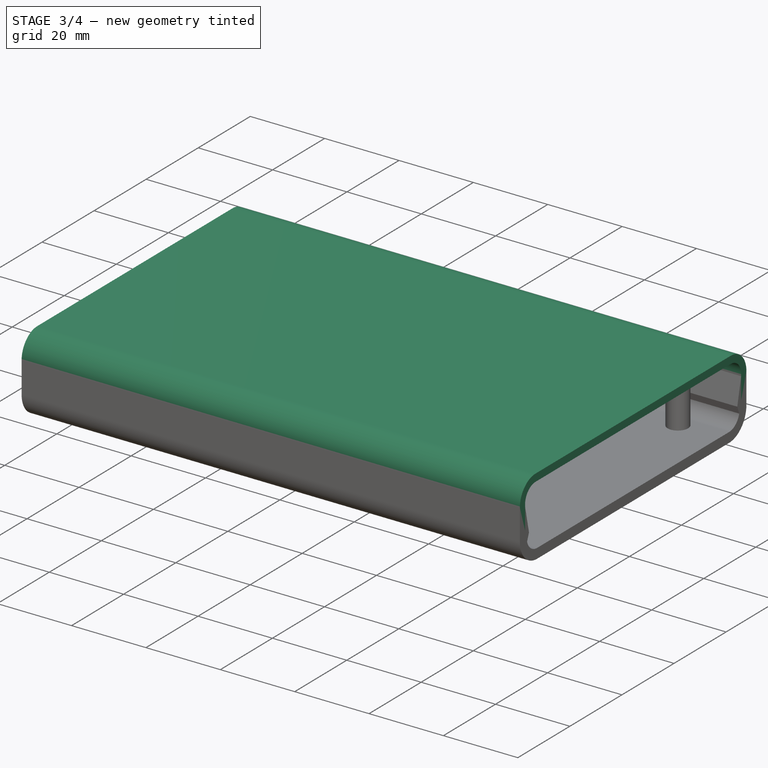
[diagram: stage 3 of 4 — iso view after this stage's code; geometry added in this stage tinted green]
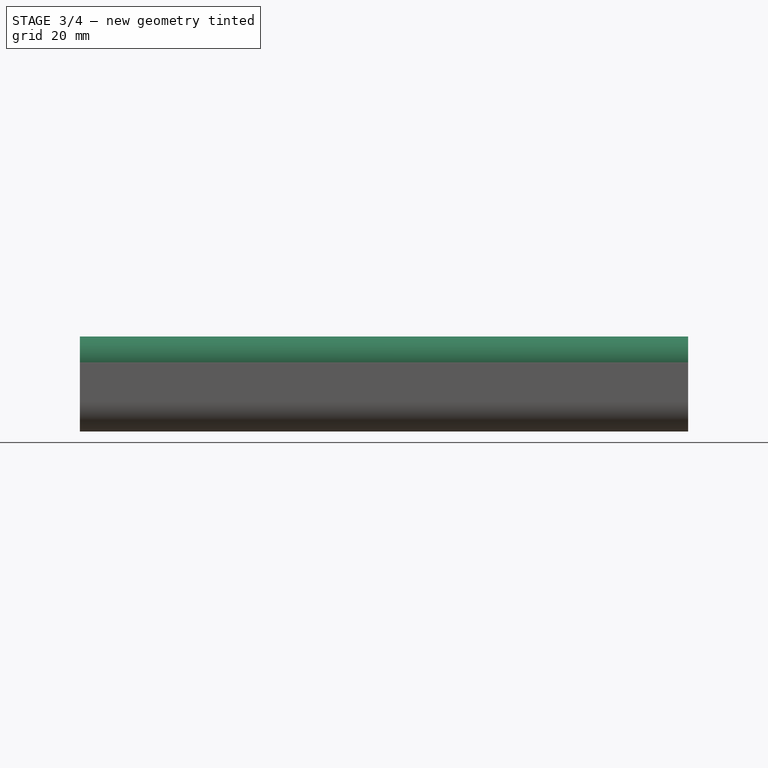
[diagram: stage 3 of 4 — front view after this stage's code; geometry added in this stage tinted green]
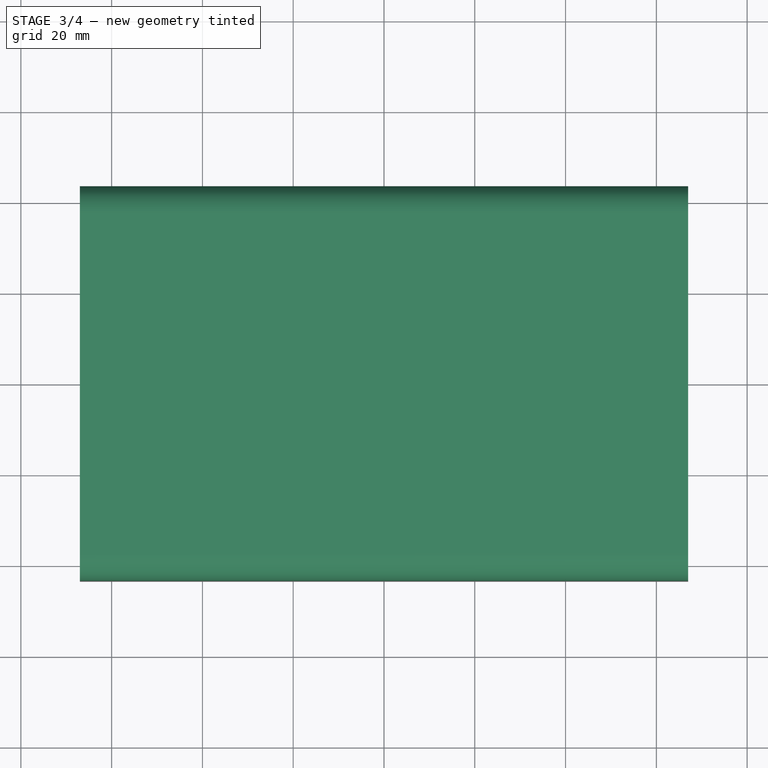
[diagram: stage 3 of 4 — top view after this stage's code; geometry added in this stage tinted green]
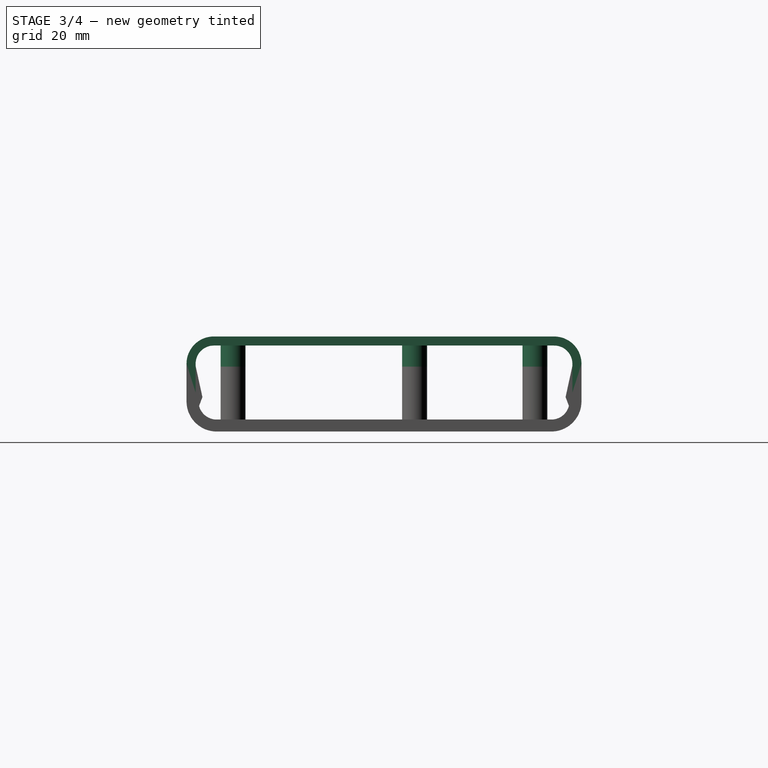
[diagram: stage 3 of 4 — right view after this stage's code; geometry added in this stage tinted green]
FEATURE [PartDesign::Body] Body002  label="Плата HackRF"
  AllowCompound = false
  Group = -> [Pad,Pad001,Sketch,Sketch012,Sketch013]
  Origin = -> Origin
  Tip = -> Pad
FEATURE [Sketcher::SketchObject] Sketch014
  ArcFitTolerance = 1e-06
  AttachmentSupport = -> [YZ_Plane001]
  FullyConstrained = true
  MakeInternals = false
  MapMode = 5
  Placement = pos=(0,0,0) rot=(0.57735,0.57735,0.57735;2.0944rad)
  sketch-geometry (16):
    g0: LineSegment StartX=-37.5 StartY=6.65 StartZ=0 EndX=37.5 EndY=6.65 EndZ=0
    g1: ArcOfCircle CenterX=-37.5 CenterY=0.65 CenterZ=0 NormalX=0 NormalY=0 NormalZ=1 AngleXU=0 Radius=6 StartAngle=1.5708 EndAngle=3.14159
    g2: ArcOfCircle CenterX=-37.5 CenterY=0.65 CenterZ=0 NormalX=0 NormalY=0 NormalZ=1 AngleXU=0 Radius=4 StartAngle=1.5708 EndAngle=3.14159
    g3: ArcOfCircle CenterX=37.5 CenterY=0.65 CenterZ=0 NormalX=0 NormalY=0 NormalZ=1 AngleXU=0 Radius=6 StartAngle=0 EndAngle=1.5708
    g4: ArcOfCircle CenterX=37.5 CenterY=0.65 CenterZ=0 NormalX=0 NormalY=0 NormalZ=1 AngleXU=0 Radius=4 StartAngle=0 EndAngle=1.5708
    g5: LineSegment StartX=-37.5 StartY=4.65 StartZ=0 EndX=37.5 EndY=4.65 EndZ=0
    g6: LineSegment StartX=-41.5 StartY=0.65 StartZ=0 EndX=-41.5 EndY=-5.69319 EndZ=0
    g7: LineSegment StartX=-43.5 StartY=0.65 StartZ=0 EndX=-41.5 EndY=-5.69319 EndZ=0
    g8: LineSegment [constr] StartX=-43.5 StartY=0.65 StartZ=0 EndX=-43.5 EndY=-5.69319 EndZ=0
    g9: LineSegment StartX=41.5 StartY=0.65 StartZ=0 EndX=41.5 EndY=-5.69319 EndZ=0
    g10: LineSegment StartX=43.5 StartY=0.65 StartZ=0 EndX=41.5 EndY=-5.69319 EndZ=0
    g11: LineSegment [constr] StartX=43.5 StartY=0.65 StartZ=0 EndX=43.5 EndY=-5.69319 EndZ=0
    g12: LineSegment [constr] StartX=-37.5 StartY=0.65 StartZ=0 EndX=-37.5 EndY=-0.65 EndZ=0
    g13: LineSegment [constr] StartX=-37.5 StartY=-0.65 StartZ=0 EndX=37.5 EndY=-0.65 EndZ=0
    g14: LineSegment [constr] StartX=37.5 StartY=-0.65 StartZ=0 EndX=37.5 EndY=0.65 EndZ=0
    g15: LineSegment [constr] StartX=37.5 StartY=0.65 StartZ=0 EndX=-37.5 EndY=0.65 EndZ=0
  constraints (39):
    c: Horizontal(g0)
    c: Coincident(g2,g1)
    c: Coincident(g4,g3)
    c: Horizontal(g5)
    c: Tangent(g5,g4) = 1.5708
    c: Tangent(g3,g0) = 1.5708
    c: Tangent(g1,g0) = 1.5708
    c: Tangent(g5,g2) = 1.5708
    c: Vertical(g6)
    c: Coincident(g7,g1)
    c: Coincident(g7,g6)
    c: Vertical(g8)
    c: Tangent(g8,g1) = -1.5708
    c: Tangent(g6,g2) = -1.5708
    c: Horizontal(g6,g8)
    c: Coincident(g10,g3)
    c: Coincident(g10,g9)
    c: Vertical(g11)
    c: Horizontal(g11,g9)
    c: Vertical(g9)
    c: Tangent(g11,g3) = 1.5708
    c: Tangent(g9,g4) = 1.5708
    c: Horizontal(g6,g9)
    c: Angle(g8,g7) = 0.305433
    c: Distance(g0,g2) = 2
    c: Coincident(g12,g13)
    c: Coincident(g13,g14)
    c: Coincident(g14,g15)
    c: Coincident(g15,g12)
    c: Vertical(g12)
    c: Vertical(g14)
    c: Horizontal(g13)
    c: Horizontal(g15)
    c: DistanceX(g15,g15) = 75
    c: DistanceY(g12,g12) = 1.3
    c: Symmetric(g12,g13,g-1)
    c: Coincident(g1,g12)
    c: Coincident(g3,g14)
    c: DistanceX(g2,g1) = 4
FEATURE [PartDesign::Pad] Pad002
  Direction = (1,0,0)
  Length = 67
  Length2 = 67
  Placement = pos=(0,0,0) rot=(1,1,1;2.0944rad)
  Profile = -> Sketch014
  ReferenceAxis = -> Sketch014 [N_Axis]
  Refine = true
  Reversed = true
  Suppressed = false
  Type = 4
FEATURE [PartDesign::SubShapeBinder] Binder
  BindCopyOnChange = 0
  BindMode = 0
  ClaimChildren = false
  Context = -> Body [Binder.]
  Fuse = false
  MakeFace = true
  OffsetFill = false
  OffsetIntersection = false
  OffsetJoinType = 0
  OffsetOpenResult = false
  PartialLoad = false
  Refine = true
  Relative = true
  Support = -> [Body002[Pad001.Face37,Pad001.Face25,Pad001.Face38,Pad001.Face26,Pad001.Face40,Pad001.Face28,Pad001.Face36,Pad001.Face24]]
  _Version = 2
FEATURE [Sketcher::SketchObject] Sketch017
  ArcFitTolerance = 1e-06
  AttachmentSupport = -> [XY_Plane001]
  ExternalGeometry = -> [Binder]
  FullyConstrained = true
  MakeInternals = false
  MapMode = 5
  sketch-geometry (18):
    g0: Circle CenterX=-55.75 CenterY=33.25 CenterZ=0 NormalX=0 NormalY=0 NormalZ=1 AngleXU=0 Radius=0.75
    g1: Circle CenterX=-55.75 CenterY=33.25 CenterZ=0 NormalX=0 NormalY=0 NormalZ=1 AngleXU=0 Radius=2.75
    g2: Circle CenterX=-55.75 CenterY=33.25 CenterZ=0 NormalX=0 NormalY=0 NormalZ=1 AngleXU=0 Radius=1.6
    g3: Circle CenterX=55.75 CenterY=33.25 CenterZ=0 NormalX=0 NormalY=0 NormalZ=1 AngleXU=0 Radius=1.6
    g4: Circle CenterX=55.75 CenterY=33.25 CenterZ=0 NormalX=0 NormalY=0 NormalZ=1 AngleXU=0 Radius=0.75
    g5: Circle CenterX=55.75 CenterY=33.25 CenterZ=0 NormalX=0 NormalY=0 NormalZ=1 AngleXU=0 Radius=2.75
    g6: Circle CenterX=10.75 CenterY=6.75 CenterZ=0 NormalX=0 NormalY=0 NormalZ=1 AngleXU=0 Radius=2.75
    g7: Circle CenterX=10.75 CenterY=6.75 CenterZ=0 NormalX=0 NormalY=0 NormalZ=1 AngleXU=0 Radius=0.75
    g8: Circle CenterX=10.75 CenterY=6.75 CenterZ=0 NormalX=0 NormalY=0 NormalZ=1 AngleXU=0 Radius=1.6
    g9: Circle CenterX=-55.75 CenterY=-33.25 CenterZ=0 NormalX=0 NormalY=0 NormalZ=1 AngleXU=0 Radius=2.75
    g10: Circle CenterX=-55.75 CenterY=-33.25 CenterZ=0 NormalX=0 NormalY=0 NormalZ=1 AngleXU=0 Radius=0.75
    g11: Circle CenterX=-55.75 CenterY=-33.25 CenterZ=0 NormalX=0 NormalY=0 NormalZ=1 AngleXU=0 Radius=1.6
    g12: Circle CenterX=5.75 CenterY=-33.25 CenterZ=0 NormalX=0 NormalY=0 NormalZ=1 AngleXU=0 Radius=2.75
    g13: Circle CenterX=5.75 CenterY=-33.25 CenterZ=0 NormalX=0 NormalY=0 NormalZ=1 AngleXU=0 Radius=0.75
    g14: Circle CenterX=5.75 CenterY=-33.25 CenterZ=0 NormalX=0 NormalY=0 NormalZ=1 AngleXU=0 Radius=1.6
    g15: Circle CenterX=55.75 CenterY=-33.25 CenterZ=0 NormalX=0 NormalY=0 NormalZ=1 AngleXU=0 Radius=2.75
    g16: Circle CenterX=55.75 CenterY=-33.25 CenterZ=0 NormalX=0 NormalY=0 NormalZ=1 AngleXU=0 Radius=0.75
    g17: Circle CenterX=55.75 CenterY=-33.25 CenterZ=0 NormalX=0 NormalY=0 NormalZ=1 AngleXU=0 Radius=1.6
  constraints (36):
    c: Coincident(g0,g-4)
    c: Coincident(g1,g0)
    c: Coincident(g2,g0)
    c: Coincident(g3,g-8)
    c: Coincident(g4,g3)
    c: Coincident(g5,g3)
    c: Coincident(g6,g-6)
    c: Coincident(g7,g6)
    c: Coincident(g8,g6)
    c: Coincident(g9,g-14)
    c: Coincident(g10,g9)
    c: Coincident(g11,g9)
    c: Coincident(g12,g-12)
    c: Coincident(g13,g12)
    c: Coincident(g14,g12)
    c: Coincident(g15,g-10)
    c: Coincident(g16,g15)
    c: Coincident(g17,g15)
    c: Equal(g15,g12)
    c: Equal(g12,g9)
    c: Equal(g9,g6)
    c: Equal(g6,g5)
    c: Equal(g5,g1)
    c: Equal(g1,g-4)
    c: Equal(g2,g3)
    c: Equal(g3,g8)
    c: Equal(g8,g17)
    c: Equal(g17,g14)
    c: Equal(g14,g11)
    c: Equal(g11,g-3)
    c: Equal(g0,g4)
    c: Equal(g4,g7)
    c: Equal(g7,g16)
    c: Equal(g16,g13)
    c: Equal(g13,g10)
    c: Diameter(g0) = 1.5
FEATURE [PartDesign::Pad] Pad004
  BaseFeature = -> Pad002
  Direction = (0,0,1)
  Length = 4.65
  Length2 = 10
  Placement = pos=(0,0,0) rot=(1,1,1;2.0944rad)
  Profile = -> Sketch017 [Edge2,Edge10,Edge13,Edge7,Edge6,Edge16]
  ReferenceAxis = -> Sketch017 [N_Axis]
  Refine = true
  Suppressed = false
  Type = 0
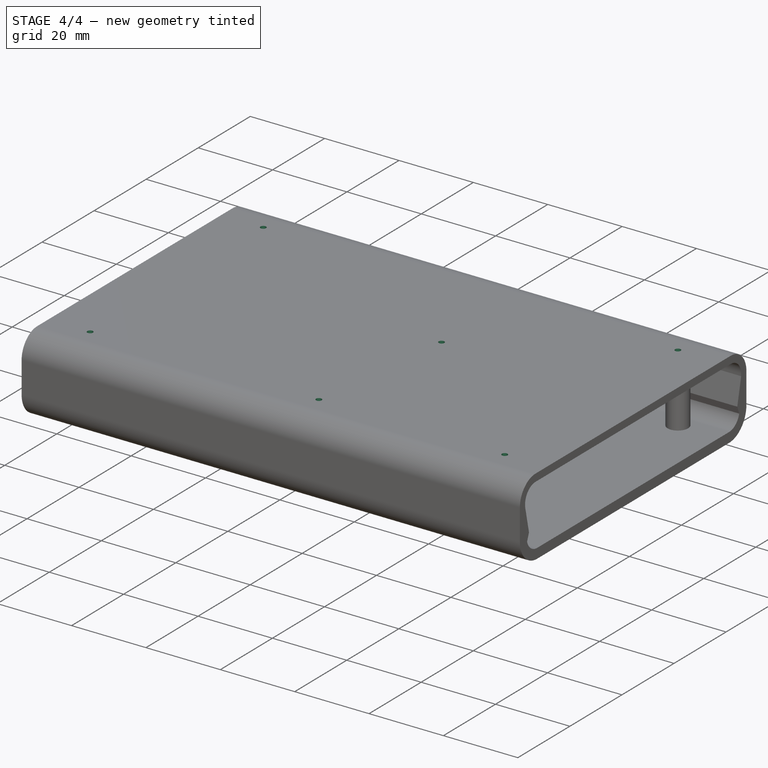
[diagram: stage 4 of 4 — iso view after this stage's code; geometry added in this stage tinted green]
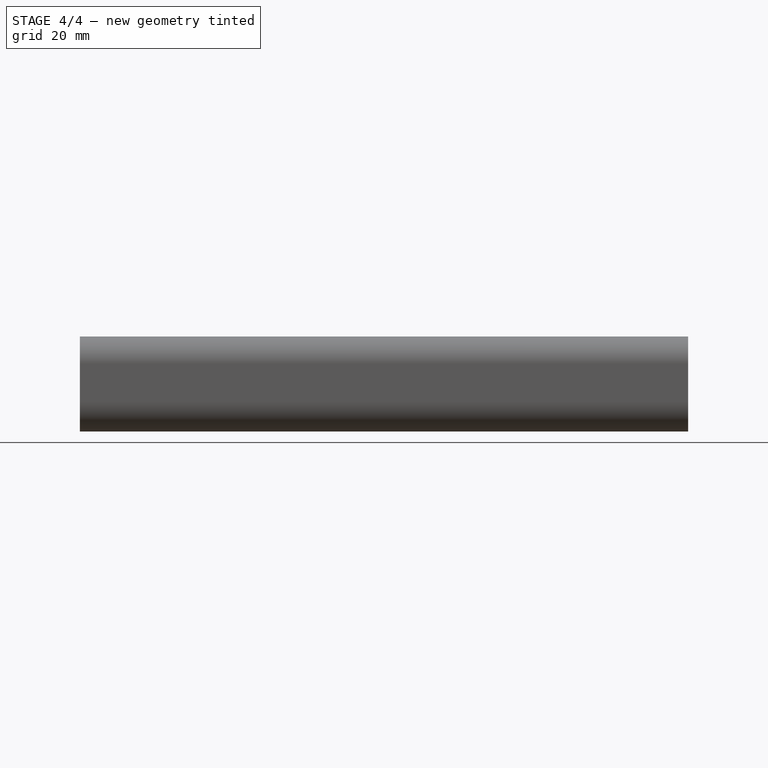
[diagram: stage 4 of 4 — front view after this stage's code; geometry added in this stage tinted green]
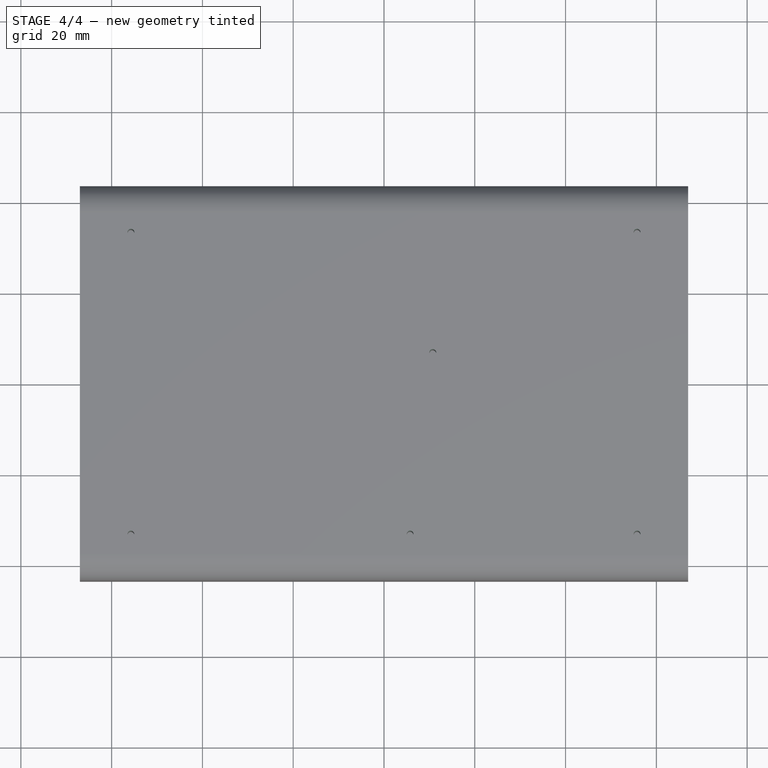
[diagram: stage 4 of 4 — top view after this stage's code; geometry added in this stage tinted green]
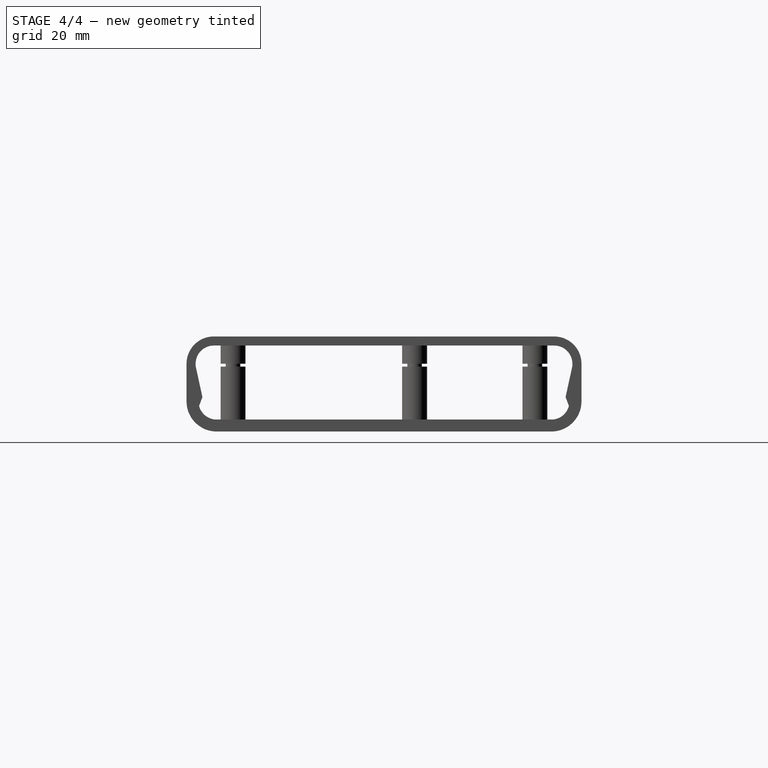
[diagram: stage 4 of 4 — right view after this stage's code; geometry added in this stage tinted green]
FEATURE [Sketcher::SketchObject] Sketch019
  ArcFitTolerance = 1e-06
  AttachmentSupport = -> [XY_Plane002]
  FullyConstrained = true
  MakeInternals = false
  MapMode = 5
FEATURE [PartDesign::Pocket] Pocket
  BaseFeature = -> Pad004
  Direction = (0,0,-1)
  Length = 0.65
  Length2 = 5
  Placement = pos=(0,0,0) rot=(1,1,1;2.0944rad)
  Profile = -> Sketch017 [Edge2,Edge3,Edge12,Edge10,Edge15,Edge13,Edge9,Edge7,Edge4,Edge6,Edge18,Edge16]
  ReferenceAxis = -> Sketch017 [N_Axis]
  Refine = true
  Reversed = true
  Suppressed = false
  Type = 0
FEATURE [PartDesign::Pocket] Pocket001
  BaseFeature = -> Pocket
  Direction = (0,0,-1)
  Length = 3.65
  Length2 = 5
  Placement = pos=(0,0,0) rot=(1,1,1;2.0944rad)
  Profile = -> Sketch017 [Edge18,Edge15,Edge12,Edge3,Edge9,Edge4]
  ReferenceAxis = -> Sketch017 [N_Axis]
  Refine = true
  Reversed = true
  Suppressed = false
  Type = 0
  expr: Length = 0.65 + 3
FEATURE [PartDesign::Pocket] Pocket002
  BaseFeature = -> Pocket001
  Direction = (0,0,-1)
  Length = 5
  Length2 = 5
  Placement = pos=(0,0,0) rot=(1,1,1;2.0944rad)
  Profile = -> Sketch017 [Edge5,Edge17,Edge8,Edge14,Edge11,Edge1]
  ReferenceAxis = -> Sketch017 [N_Axis]
  Refine = true
  Reversed = true
  Suppressed = false
  Type = 1
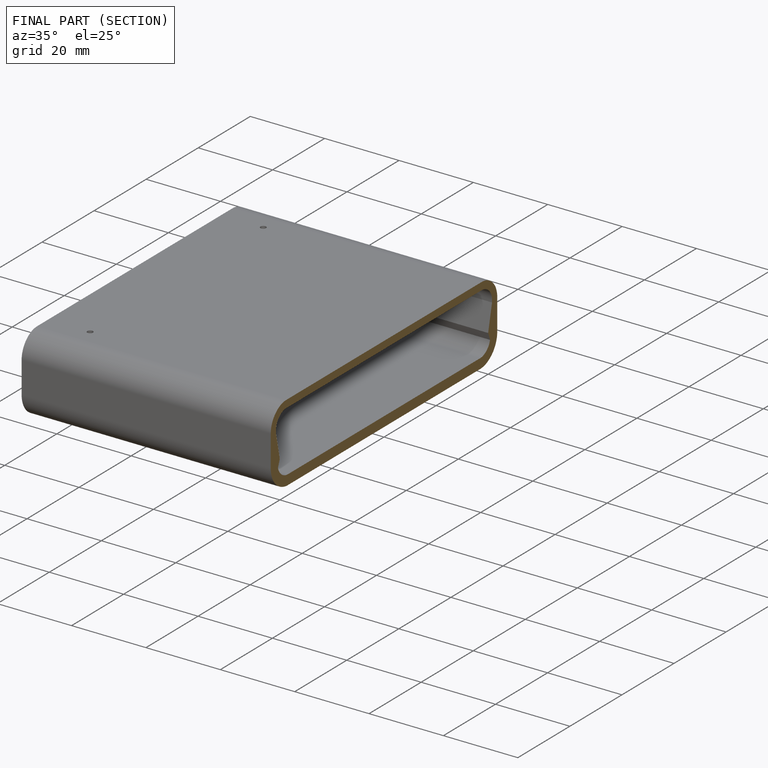
[diagram: finished part — half-section view (interior)]
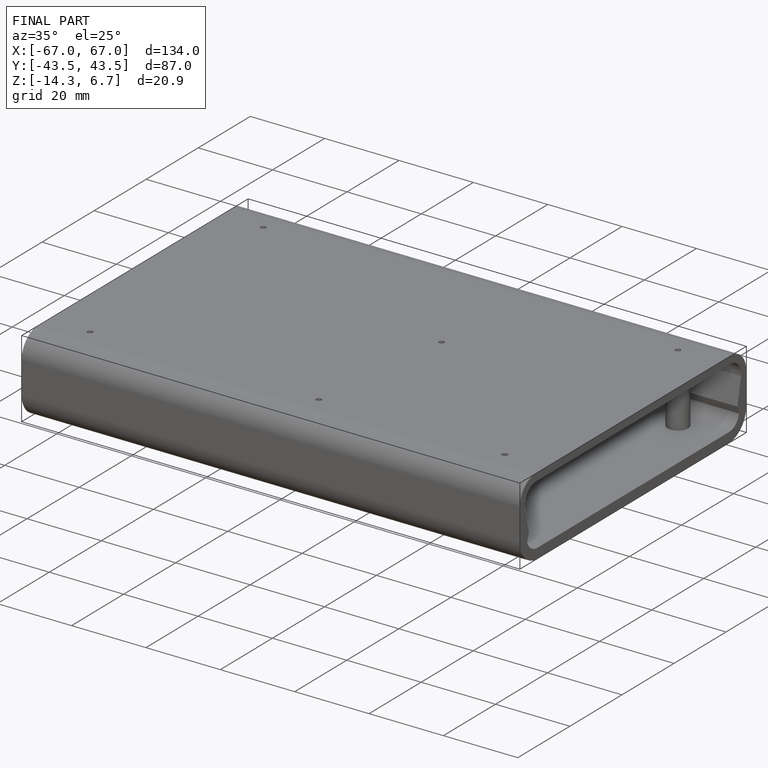
[diagram: finished part — iso view with bounding-box wireframe]
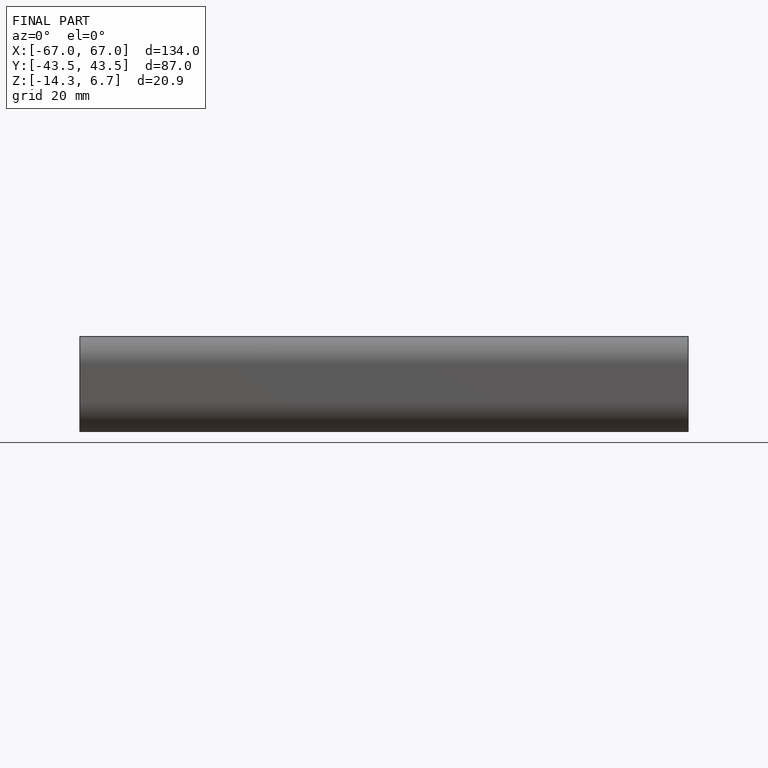
[diagram: finished part — front view with bounding-box wireframe]
